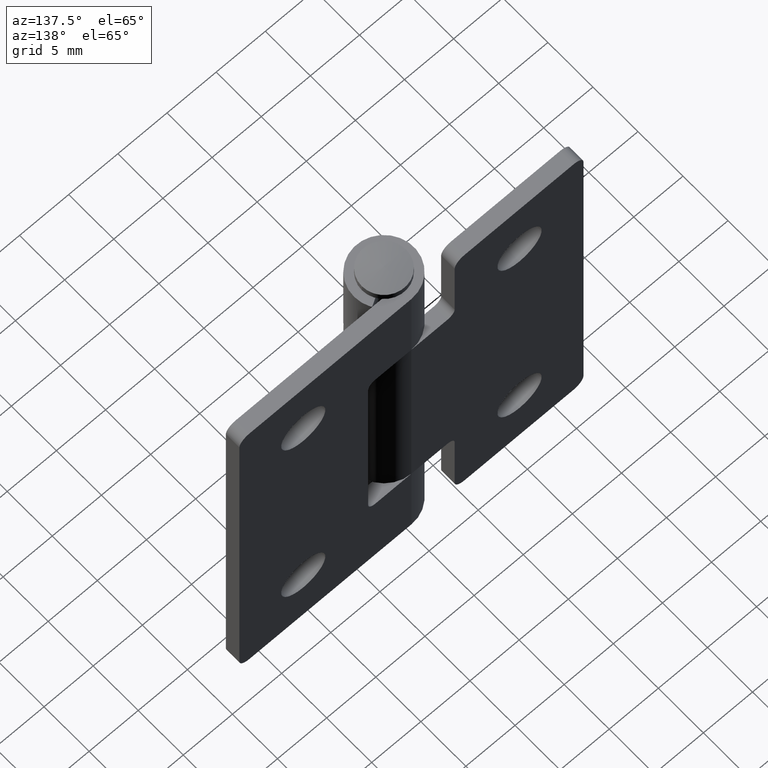
[diagram: clean part render]
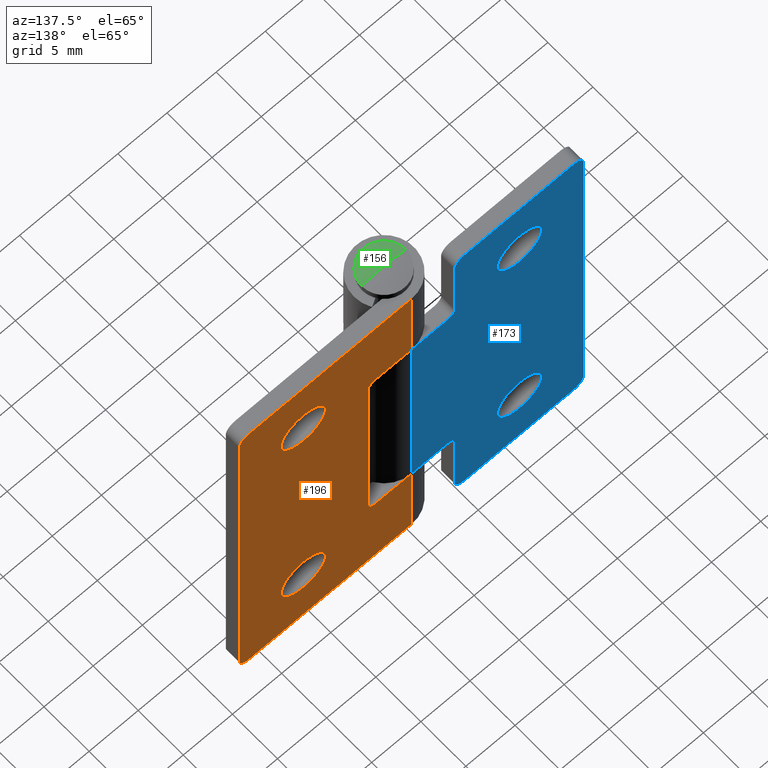
[diagram: same view with three faces highlighted in distinct colors, each labeled with its STEP entity id]
A machine part, auxiliary view with three faces highlighted in distinct colors.
Their STEP definitions:

[orange] entity #196 — the highlighted planar face has unit normal (0, 1, 0).
#196=ADVANCED_FACE('',(#683,#684,#685),#682,.T.);
#682=PLANE('',#1030);
#683=FACE_OUTER_BOUND('',#1031,.T.);
#684=FACE_BOUND('',#1032,.T.);
#685=FACE_BOUND('',#1033,.T.);
#1027=CARTESIAN_POINT('',(2.23684741027E+01,3.05000000000E+00,-3.19999768906E+00));
#1028=DIRECTION('',(0.00000000000E+00,1.00000000000E+00,0.00000000000E+00));
#1029=DIRECTION('',(0.00000000000E+00,-0.00000000000E+00,1.00000000000E+00));
#1030=AXIS2_PLACEMENT_3D('',#1027,#1028,#1029);
#1031=EDGE_LOOP('',(#1311,#1312,#1313,#1314,#1315,#1316,#1317,#1318,#1319,#1320,#1321,#1322));
#1032=EDGE_LOOP('',(#1323,#1324));
#1033=EDGE_LOOP('',(#1325,#1326));
#1311=ORIENTED_EDGE('',*,*,#1475,.T.);
#1312=ORIENTED_EDGE('',*,*,#1487,.F.);
#1313=ORIENTED_EDGE('',*,*,#1505,.T.);
#1314=ORIENTED_EDGE('',*,*,#1489,.F.);
#1315=ORIENTED_EDGE('',*,*,#1481,.F.);
#1316=ORIENTED_EDGE('',*,*,#1468,.F.);
#1317=ORIENTED_EDGE('',*,*,#1496,.F.);
#1318=ORIENTED_EDGE('',*,*,#1499,.T.);
#1319=ORIENTED_EDGE('',*,*,#1501,.F.);
#1320=ORIENTED_EDGE('',*,*,#1504,.T.);
#1321=ORIENTED_EDGE('',*,*,#1482,.F.);
#1322=ORIENTED_EDGE('',*,*,#1470,.F.);
#1323=ORIENTED_EDGE('',*,*,#1506,.T.);
#1324=ORIENTED_EDGE('',*,*,#1507,.T.);
#1325=ORIENTED_EDGE('',*,*,#1508,.T.);
#1326=ORIENTED_EDGE('',*,*,#1509,.T.);
#1468=EDGE_CURVE('',#2138,#2145,#2146,.T.);
#1470=EDGE_CURVE('',#2158,#2159,#2160,.T.);
#1475=EDGE_CURVE('',#2158,#2186,#2193,.T.);
#1481=EDGE_CURVE('',#2145,#2205,#2233,.T.);
#1482=EDGE_CURVE('',#2159,#2239,#2240,.T.);
#1487=EDGE_CURVE('',#2266,#2186,#2274,.T.);
#1489=EDGE_CURVE('',#2205,#2286,#2287,.T.);
#1496=EDGE_CURVE('',#2327,#2138,#2334,.T.);
#1499=EDGE_CURVE('',#2327,#2347,#2354,.T.);
#1501=EDGE_CURVE('',#2360,#2347,#2368,.T.);
#1504=EDGE_CURVE('',#2360,#2239,#2386,.T.);
#1505=EDGE_CURVE('',#2266,#2286,#2392,.T.);
#1506=EDGE_CURVE('',#2398,#2399,#2400,.T.);
#1507=EDGE_CURVE('',#2399,#2398,#2406,.T.);
#1508=EDGE_CURVE('',#2412,#2413,#2414,.T.);
#1509=EDGE_CURVE('',#2413,#2412,#2420,.T.);
#2138=VERTEX_POINT('',#2874);
#2145=VERTEX_POINT('',#2879);
#2146=LINE('',#2880,#2881);
#2158=VERTEX_POINT('',#2887);
#2159=VERTEX_POINT('',#2888);
#2160=LINE('',#2889,#2890);
#2186=VERTEX_POINT('',#2905);
#2193=LINE('',#2909,#2910);
#2205=VERTEX_POINT('',#2916);
#2233=LINE('',#2933,#2934);
#2239=VERTEX_POINT('',#2936);
#2240=LINE('',#2937,#2938);
#2266=VERTEX_POINT('',#2952);
#2274=CIRCLE('',#2960,1.00000000000E+00);
#2286=VERTEX_POINT('',#2965);
#2287=CIRCLE('',#2969,1.00000000000E+00);
#2327=VERTEX_POINT('',#2991);
#2334=LINE('',#2995,#2996);
#2347=VERTEX_POINT('',#3003);
#2354=CIRCLE('',#3010,7.50000000000E-01);
#2360=VERTEX_POINT('',#3011);
#2368=LINE('',#3016,#3017);
#2386=CIRCLE('',#3029,7.50000000000E-01);
#2392=LINE('',#3030,#3031);
#2398=VERTEX_POINT('',#3033);
#2399=VERTEX_POINT('',#3034);
#2400=CIRCLE('',#3038,2.25000000000E+00);
#2406=CIRCLE('',#3042,2.25000000000E+00);
#2412=VERTEX_POINT('',#3043);
#2413=VERTEX_POINT('',#3044);
#2414=CIRCLE('',#3048,2.25000000000E+00);
#2420=CIRCLE('',#3052,2.25000000000E+00);
#2874=CARTESIAN_POINT('',(2.41184741027E+01,3.05000000000E+00,9.80000231094E+00));
#2879=CARTESIAN_POINT('',(2.41184741027E+01,3.05000000000E+00,8.00002310939E-01));
#2880=CARTESIAN_POINT('',(2.41184741027E+01,3.05000000000E+00,9.80000231094E+00));
#2881=VECTOR('',#2882,9.00000000000E+00);
#2882=DIRECTION('',(0.00000000000E+00,0.00000000000E+00,-1.00000000000E+00));
#2887=CARTESIAN_POINT('',(2.41184741027E+01,3.05000000000E+00,4.08000023109E+01));
#2888=CARTESIAN_POINT('',(2.41184741027E+01,3.05000000000E+00,3.18000023109E+01));
#2889=CARTESIAN_POINT('',(2.41184741027E+01,3.05000000000E+00,4.08000023109E+01));
#2890=VECTOR('',#2891,9.00000000000E+00);
#2891=DIRECTION('',(0.00000000000E+00,0.00000000000E+00,-1.00000000000E+00));
#2905=CARTESIAN_POINT('',(4.06184741027E+01,3.05000000000E+00,4.08000023109E+01));
#2909=CARTESIAN_POINT('',(2.41184741027E+01,3.05000000000E+00,4.08000023109E+01));
#2910=VECTOR('',#2911,1.65000000000E+01);
#2911=DIRECTION('',(1.00000000000E+00,0.00000000000E+00,0.00000000000E+00));
#2916=CARTESIAN_POINT('',(4.06184741027E+01,3.05000000000E+00,8.00002310939E-01));
#2933=CARTESIAN_POINT('',(2.41184741027E+01,3.05000000000E+00,8.00002310939E-01));
#2934=VECTOR('',#2935,1.65000000000E+01);
#2935=DIRECTION('',(1.00000000000E+00,0.00000000000E+00,0.00000000000E+00));
#2936=CARTESIAN_POINT('',(2.77684741027E+01,3.05000000000E+00,3.18000023109E+01));
#2937=CARTESIAN_POINT('',(2.41184741027E+01,3.05000000000E+00,3.18000023109E+01));
#2938=VECTOR('',#2939,3.65000000000E+00);
#2939=DIRECTION('',(1.00000000000E+00,0.00000000000E+00,-1.48921970646E-13));
#2952=CARTESIAN_POINT('',(4.16184741027E+01,3.05000000000E+00,3.98000023109E+01));
#2957=CARTESIAN_POINT('',(4.06184741027E+01,3.05000000000E+00,3.98000023109E+01));
#2958=DIRECTION('',(0.00000000000E+00,-1.00000000000E+00,0.00000000000E+00));
#2959=DIRECTION('',(-0.00000000000E+00,-0.00000000000E+00,-1.00000000000E+00));
#2960=AXIS2_PLACEMENT_3D('',#2957,#2958,#2959);
#2965=CARTESIAN_POINT('',(4.16184741027E+01,3.05000000000E+00,1.80000231094E+00));
#2966=CARTESIAN_POINT('',(4.06184741027E+01,3.05000000000E+00,1.80000231094E+00));
#2967=DIRECTION('',(0.00000000000E+00,-1.00000000000E+00,0.00000000000E+00));
#2968=DIRECTION('',(-0.00000000000E+00,-0.00000000000E+00,-1.00000000000E+00));
#2969=AXIS2_PLACEMENT_3D('',#2966,#2967,#2968);
#2991=CARTESIAN_POINT('',(2.77684741027E+01,3.05000000000E+00,9.80000231094E+00));
#2995=CARTESIAN_POINT('',(2.77684741027E+01,3.05000000000E+00,9.80000231094E+00));
#2996=VECTOR('',#2997,3.65000000000E+00);
#2997=DIRECTION('',(-1.00000000000E+00,0.00000000000E+00,1.52328682392E-13));
#3003=CARTESIAN_POINT('',(2.85184741027E+01,3.05000000000E+00,1.05500023109E+01));
#3007=CARTESIAN_POINT('',(2.77684741027E+01,3.05000000000E+00,1.05500023109E+01));
#3008=DIRECTION('',(0.00000000000E+00,-1.00000000000E+00,0.00000000000E+00));
#3009=DIRECTION('',(-0.00000000000E+00,-0.00000000000E+00,-1.00000000000E+00));
#3010=AXIS2_PLACEMENT_3D('',#3007,#3008,#3009);
#3011=CARTESIAN_POINT('',(2.85184741027E+01,3.05000000000E+00,3.10500023109E+01));
#3016=CARTESIAN_POINT('',(2.85184741027E+01,3.05000000000E+00,3.10500023109E+01));
#3017=VECTOR('',#3018,2.05000000000E+01);
#3018=DIRECTION('',(0.00000000000E+00,0.00000000000E+00,-1.00000000000E+00));
#3026=CARTESIAN_POINT('',(2.77684741027E+01,3.05000000000E+00,3.10500023109E+01));
#3027=DIRECTION('',(0.00000000000E+00,-1.00000000000E+00,0.00000000000E+00));
#3028=DIRECTION('',(-0.00000000000E+00,-0.00000000000E+00,-1.00000000000E+00));
#3029=AXIS2_PLACEMENT_3D('',#3026,#3027,#3028);
#3030=CARTESIAN_POINT('',(4.16184741027E+01,3.05000000000E+00,3.98000023109E+01));
#3031=VECTOR('',#3032,3.80000000000E+01);
#3032=DIRECTION('',(0.00000000000E+00,0.00000000000E+00,-1.00000000000E+00));
#3033=CARTESIAN_POINT('',(3.51184741027E+01,3.05000000000E+00,1.00500023109E+01));
#3034=CARTESIAN_POINT('',(3.51184741027E+01,3.05000000000E+00,5.55000231094E+00));
#3035=CARTESIAN_POINT('',(3.51184741027E+01,3.05000000000E+00,7.80000231094E+00));
#3036=DIRECTION('',(0.00000000000E+00,-1.00000000000E+00,0.00000000000E+00));
#3037=DIRECTION('',(-1.22460635382E-16,0.00000000000E+00,1.00000000000E+00));
#3038=AXIS2_PLACEMENT_3D('',#3035,#3036,#3037);
#3039=CARTESIAN_POINT('',(3.51184741027E+01,3.05000000000E+00,7.80000231094E+00));
#3040=DIRECTION('',(0.00000000000E+00,-1.00000000000E+00,0.00000000000E+00));
#3041=DIRECTION('',(-1.22460635382E-16,0.00000000000E+00,1.00000000000E+00));
#3042=AXIS2_PLACEMENT_3D('',#3039,#3040,#3041);
#3043=CARTESIAN_POINT('',(3.51184741027E+01,3.05000000000E+00,3.60500023109E+01));
#3044=CARTESIAN_POINT('',(3.51184741027E+01,3.05000000000E+00,3.15500023109E+01));
#3045=CARTESIAN_POINT('',(3.51184741027E+01,3.05000000000E+00,3.38000023109E+01));
#3046=DIRECTION('',(0.00000000000E+00,-1.00000000000E+00,0.00000000000E+00));
#3047=DIRECTION('',(-1.22460635382E-16,0.00000000000E+00,1.00000000000E+00));
#3048=AXIS2_PLACEMENT_3D('',#3045,#3046,#3047);
#3049=CARTESIAN_POINT('',(3.51184741027E+01,3.05000000000E+00,3.38000023109E+01));
#3050=DIRECTION('',(0.00000000000E+00,-1.00000000000E+00,0.00000000000E+00));
#3051=DIRECTION('',(-1.22460635382E-16,0.00000000000E+00,1.00000000000E+00));
#3052=AXIS2_PLACEMENT_3D('',#3049,#3050,#3051);

[blue] entity #173 — the highlighted planar face has unit normal (0, -1, 0).
#173=ADVANCED_FACE('',(#451,#452,#453),#450,.F.);
#450=PLANE('',#913);
#451=FACE_OUTER_BOUND('',#914,.T.);
#452=FACE_BOUND('',#915,.T.);
#453=FACE_BOUND('',#916,.T.);
#910=CARTESIAN_POINT('',(-4.19922028826E+01,3.05000000000E+00,4.48000003698E+01));
#911=DIRECTION('',(0.00000000000E+00,-1.00000000000E+00,0.00000000000E+00));
#912=DIRECTION('',(0.00000000000E+00,0.00000000000E+00,-1.00000000000E+00));
#913=AXIS2_PLACEMENT_3D('',#910,#911,#912);
#914=EDGE_LOOP('',(#1190,#1191,#1192,#1193,#1194,#1195,#1196,#1197,#1198,#1199,#1200,#1201,#1202,#1203));
#915=EDGE_LOOP('',(#1204,#1205));
#916=EDGE_LOOP('',(#1206,#1207));
#1190=ORIENTED_EDGE('',*,*,#1441,.F.);
#1191=ORIENTED_EDGE('',*,*,#1442,.F.);
#1192=ORIENTED_EDGE('',*,*,#1443,.T.);
#1193=ORIENTED_EDGE('',*,*,#1444,.F.);
#1194=ORIENTED_EDGE('',*,*,#1430,.F.);
#1195=ORIENTED_EDGE('',*,*,#1437,.F.);
#1196=ORIENTED_EDGE('',*,*,#1438,.T.);
#1197=ORIENTED_EDGE('',*,*,#1434,.F.);
#1198=ORIENTED_EDGE('',*,*,#1439,.F.);
#1199=ORIENTED_EDGE('',*,*,#1429,.F.);
#1200=ORIENTED_EDGE('',*,*,#1440,.F.);
#1201=ORIENTED_EDGE('',*,*,#1411,.T.);
#1202=ORIENTED_EDGE('',*,*,#1426,.F.);
#1203=ORIENTED_EDGE('',*,*,#1424,.T.);
#1204=ORIENTED_EDGE('',*,*,#1445,.T.);
#1205=ORIENTED_EDGE('',*,*,#1446,.T.);
#1206=ORIENTED_EDGE('',*,*,#1447,.T.);
#1207=ORIENTED_EDGE('',*,*,#1448,.T.);
#1411=EDGE_CURVE('',#1768,#1769,#1770,.T.);
#1424=EDGE_CURVE('',#1855,#1848,#1856,.T.);
#1426=EDGE_CURVE('',#1855,#1769,#1868,.T.);
#1429=EDGE_CURVE('',#1881,#1874,#1888,.T.);
#1430=EDGE_CURVE('',#1894,#1895,#1896,.T.);
#1434=EDGE_CURVE('',#1914,#1921,#1922,.T.);
#1437=EDGE_CURVE('',#1934,#1894,#1941,.T.);
#1438=EDGE_CURVE('',#1934,#1921,#1947,.T.);
#1439=EDGE_CURVE('',#1874,#1914,#1953,.T.);
#1440=EDGE_CURVE('',#1768,#1881,#1959,.T.);
#1441=EDGE_CURVE('',#1965,#1848,#1966,.T.);
#1442=EDGE_CURVE('',#1972,#1965,#1973,.T.);
#1443=EDGE_CURVE('',#1972,#1979,#1980,.T.);
#1444=EDGE_CURVE('',#1895,#1979,#1986,.T.);
#1445=EDGE_CURVE('',#1992,#1993,#1994,.T.);
#1446=EDGE_CURVE('',#1993,#1992,#2000,.T.);
#1447=EDGE_CURVE('',#2006,#2007,#2008,.T.);
#1448=EDGE_CURVE('',#2007,#2006,#2014,.T.);
#1768=VERTEX_POINT('',#2656);
#1769=VERTEX_POINT('',#2657);
#1770=LINE('',#2658,#2659);
#1848=VERTEX_POINT('',#2704);
#1855=VERTEX_POINT('',#2708);
#1856=LINE('',#2709,#2710);
#1868=CIRCLE('',#2718,1.00000000000E+00);
#1874=VERTEX_POINT('',#2719);
#1881=VERTEX_POINT('',#2723);
#1888=LINE('',#2727,#2728);
#1894=VERTEX_POINT('',#2730);
#1895=VERTEX_POINT('',#2731);
#1896=LINE('',#2732,#2733);
#1914=VERTEX_POINT('',#2743);
#1921=VERTEX_POINT('',#2747);
#1922=LINE('',#2748,#2749);
#1934=VERTEX_POINT('',#2754);
#1941=LINE('',#2758,#2759);
#1947=CIRCLE('',#2764,7.50000000000E-01);
#1953=CIRCLE('',#2768,1.00000000000E+00);
#1959=CIRCLE('',#2772,1.00000000000E+00);
#1965=VERTEX_POINT('',#2773);
#1966=CIRCLE('',#2777,1.00000000000E+00);
#1972=VERTEX_POINT('',#2778);
#1973=LINE('',#2779,#2780);
#1979=VERTEX_POINT('',#2782);
#1980=CIRCLE('',#2786,7.50000000000E-01);
#1986=LINE('',#2787,#2788);
#1992=VERTEX_POINT('',#2790);
#1993=VERTEX_POINT('',#2791);
#1994=CIRCLE('',#2795,2.25000000000E+00);
#2000=CIRCLE('',#2799,2.25000000000E+00);
#2006=VERTEX_POINT('',#2800);
#2007=VERTEX_POINT('',#2801);
#2008=CIRCLE('',#2805,2.25000000000E+00);
#2014=CIRCLE('',#2809,2.25000000000E+00);
#2656=CARTESIAN_POINT('',(-4.02422028826E+01,3.05000000000E+00,1.80000036981E+00));
#2657=CARTESIAN_POINT('',(-4.02422028826E+01,3.05000000000E+00,3.98000003698E+01));
#2658=CARTESIAN_POINT('',(-4.02422028826E+01,3.05000000000E+00,1.80000036981E+00));
#2659=VECTOR('',#2660,3.80000000000E+01);
#2660=DIRECTION('',(0.00000000000E+00,0.00000000000E+00,1.00000000000E+00));
#2704=CARTESIAN_POINT('',(-2.81422028826E+01,3.05000000000E+00,4.08000003698E+01));
#2708=CARTESIAN_POINT('',(-3.92422028826E+01,3.05000000000E+00,4.08000003698E+01));
#2709=CARTESIAN_POINT('',(-3.92422028826E+01,3.05000000000E+00,4.08000003698E+01));
#2710=VECTOR('',#2711,1.11000000000E+01);
#2711=DIRECTION('',(1.00000000000E+00,0.00000000000E+00,0.00000000000E+00));
#2715=CARTESIAN_POINT('',(-3.92422028826E+01,3.05000000000E+00,3.98000003698E+01));
#2716=DIRECTION('',(0.00000000000E+00,-1.00000000000E+00,0.00000000000E+00));
#2717=DIRECTION('',(-0.00000000000E+00,-0.00000000000E+00,-1.00000000000E+00));
#2718=AXIS2_PLACEMENT_3D('',#2715,#2716,#2717);
#2719=CARTESIAN_POINT('',(-2.81422028826E+01,3.05000000000E+00,8.00000369808E-01));
#2723=CARTESIAN_POINT('',(-3.92422028826E+01,3.05000000000E+00,8.00000369808E-01));
#2727=CARTESIAN_POINT('',(-3.92422028826E+01,3.05000000000E+00,8.00000369808E-01));
#2728=VECTOR('',#2729,1.11000000000E+01);
#2729=DIRECTION('',(1.00000000000E+00,0.00000000000E+00,0.00000000000E+00));
#2730=CARTESIAN_POINT('',(-2.27422028826E+01,3.05000000000E+00,9.80000036981E+00));
#2731=CARTESIAN_POINT('',(-2.27422028826E+01,3.05000000000E+00,3.18000003698E+01));
#2732=CARTESIAN_POINT('',(-2.27422028826E+01,3.05000000000E+00,9.80000036981E+00));
#2733=VECTOR('',#2734,2.20000000000E+01);
#2734=DIRECTION('',(0.00000000000E+00,0.00000000000E+00,1.00000000000E+00));
#2743=CARTESIAN_POINT('',(-2.71422028826E+01,3.05000000000E+00,1.80000036981E+00));
#2747=CARTESIAN_POINT('',(-2.71422028826E+01,3.05000000000E+00,9.05000036981E+00));
#2748=CARTESIAN_POINT('',(-2.71422028826E+01,3.05000000000E+00,1.80000036981E+00));
#2749=VECTOR('',#2750,7.25000000000E+00);
#2750=DIRECTION('',(0.00000000000E+00,0.00000000000E+00,1.00000000000E+00));
#2754=CARTESIAN_POINT('',(-2.63922028826E+01,3.05000000000E+00,9.80000036981E+00));
#2758=CARTESIAN_POINT('',(-2.63922028826E+01,3.05000000000E+00,9.80000036981E+00));
#2759=VECTOR('',#2760,3.65000000000E+00);
#2760=DIRECTION('',(1.00000000000E+00,0.00000000000E+00,0.00000000000E+00));
#2761=CARTESIAN_POINT('',(-2.63922028826E+01,3.05000000000E+00,9.05000036981E+00));
#2762=DIRECTION('',(0.00000000000E+00,-1.00000000000E+00,0.00000000000E+00));
#2763=DIRECTION('',(-0.00000000000E+00,-0.00000000000E+00,-1.00000000000E+00));
#2764=AXIS2_PLACEMENT_3D('',#2761,#2762,#2763);
#2765=CARTESIAN_POINT('',(-2.81422028826E+01,3.05000000000E+00,1.80000036981E+00));
#2766=DIRECTION('',(0.00000000000E+00,-1.00000000000E+00,0.00000000000E+00));
#2767=DIRECTION('',(-0.00000000000E+00,-0.00000000000E+00,-1.00000000000E+00));
#2768=AXIS2_PLACEMENT_3D('',#2765,#2766,#2767);
#2769=CARTESIAN_POINT('',(-3.92422028826E+01,3.05000000000E+00,1.80000036981E+00));
#2770=DIRECTION('',(0.00000000000E+00,-1.00000000000E+00,0.00000000000E+00));
#2771=DIRECTION('',(-0.00000000000E+00,-0.00000000000E+00,-1.00000000000E+00));
#2772=AXIS2_PLACEMENT_3D('',#2769,#2770,#2771);
#2773=CARTESIAN_POINT('',(-2.71422028826E+01,3.05000000000E+00,3.98000003698E+01));
#2774=CARTESIAN_POINT('',(-2.81422028826E+01,3.05000000000E+00,3.98000003698E+01));
#2775=DIRECTION('',(0.00000000000E+00,-1.00000000000E+00,0.00000000000E+00));
#2776=DIRECTION('',(-0.00000000000E+00,-0.00000000000E+00,-1.00000000000E+00));
#2777=AXIS2_PLACEMENT_3D('',#2774,#2775,#2776);
#2778=CARTESIAN_POINT('',(-2.71422028826E+01,3.05000000000E+00,3.25500003698E+01));
#2779=CARTESIAN_POINT('',(-2.71422028826E+01,3.05000000000E+00,3.25500003698E+01));
#2780=VECTOR('',#2781,7.25000000000E+00);
#2781=DIRECTION('',(0.00000000000E+00,0.00000000000E+00,1.00000000000E+00));
#2782=CARTESIAN_POINT('',(-2.63922028826E+01,3.05000000000E+00,3.18000003698E+01));
#2783=CARTESIAN_POINT('',(-2.63922028826E+01,3.05000000000E+00,3.25500003698E+01));
#2784=DIRECTION('',(0.00000000000E+00,-1.00000000000E+00,0.00000000000E+00));
#2785=DIRECTION('',(-0.00000000000E+00,-0.00000000000E+00,-1.00000000000E+00));
#2786=AXIS2_PLACEMENT_3D('',#2783,#2784,#2785);
#2787=CARTESIAN_POINT('',(-2.27422028826E+01,3.05000000000E+00,3.18000003698E+01));
#2788=VECTOR('',#2789,3.65000000000E+00);
#2789=DIRECTION('',(-1.00000000000E+00,0.00000000000E+00,0.00000000000E+00));
#2790=CARTESIAN_POINT('',(-3.37422028826E+01,3.05000000000E+00,1.00500003698E+01));
#2791=CARTESIAN_POINT('',(-3.37422028826E+01,3.05000000000E+00,5.55000036981E+00));
#2792=CARTESIAN_POINT('',(-3.37422028826E+01,3.05000000000E+00,7.80000036981E+00));
#2793=DIRECTION('',(0.00000000000E+00,-1.00000000000E+00,0.00000000000E+00));
#2794=DIRECTION('',(-1.22460635382E-16,0.00000000000E+00,1.00000000000E+00));
#2795=AXIS2_PLACEMENT_3D('',#2792,#2793,#2794);
#2796=CARTESIAN_POINT('',(-3.37422028826E+01,3.05000000000E+00,7.80000036981E+00));
#2797=DIRECTION('',(0.00000000000E+00,-1.00000000000E+00,0.00000000000E+00));
#2798=DIRECTION('',(-1.22460635382E-16,0.00000000000E+00,1.00000000000E+00));
#2799=AXIS2_PLACEMENT_3D('',#2796,#2797,#2798);
#2800=CARTESIAN_POINT('',(-3.37422028826E+01,3.05000000000E+00,3.60500003698E+01));
#2801=CARTESIAN_POINT('',(-3.37422028826E+01,3.05000000000E+00,3.15500003698E+01));
#2802=CARTESIAN_POINT('',(-3.37422028826E+01,3.05000000000E+00,3.38000003698E+01));
#2803=DIRECTION('',(0.00000000000E+00,-1.00000000000E+00,0.00000000000E+00));
#2804=DIRECTION('',(-1.22460635382E-16,0.00000000000E+00,1.00000000000E+00));
#2805=AXIS2_PLACEMENT_3D('',#2802,#2803,#2804);
#2806=CARTESIAN_POINT('',(-3.37422028826E+01,3.05000000000E+00,3.38000003698E+01));
#2807=DIRECTION('',(0.00000000000E+00,-1.00000000000E+00,0.00000000000E+00));
#2808=DIRECTION('',(-1.22460635382E-16,0.00000000000E+00,1.00000000000E+00));
#2809=AXIS2_PLACEMENT_3D('',#2806,#2807,#2808);

[green] entity #156 — the highlighted spherical surface has radius 8.5875 mm.
#156=ADVANCED_FACE('',(#279),#278,.T.);
#278=SPHERICAL_SURFACE('',#826,8.58750000000E+00);
#279=FACE_OUTER_BOUND('',#827,.T.);
#823=CARTESIAN_POINT('',(0.00000000000E+00,0.00000000000E+00,3.32125000000E+01));
#824=DIRECTION('',(-0.00000000000E+00,-0.00000000000E+00,-1.00000000000E+00));
#825=DIRECTION('',(1.00000000000E+00,4.04453249759E-21,0.00000000000E+00));
#826=AXIS2_PLACEMENT_3D('',#823,#824,#825);
#827=EDGE_LOOP('',(#1108,#1109,#1110));
#1108=ORIENTED_EDGE('',*,*,#1389,.T.);
#1109=ORIENTED_EDGE('',*,*,#1388,.F.);
#1110=ORIENTED_EDGE('',*,*,#1390,.F.);
#1388=EDGE_CURVE('',#1591,#1590,#1610,.T.);
#1389=EDGE_CURVE('',#1616,#1590,#1617,.T.);
#1390=EDGE_CURVE('',#1616,#1591,#1623,.T.);
#1590=VERTEX_POINT('',#2546);
#1591=VERTEX_POINT('',#2547);
#1610=CIRCLE('',#2559,2.25000000000E+00);
#1616=VERTEX_POINT('',#2560);
#1617=(BOUNDED_CURVE() B_SPLINE_CURVE(2,(#2561,#2562,#2563),.UNSPECIFIED.,.F.,.F.) B_SPLINE_CURVE_WITH_KNOTS((3,3),(0.00000000000E+00,1.00000000000E+00),.UNSPECIFIED.) CURVE() GEOMETRIC_REPRESENTATION_ITEM() RATIONAL_B_SPLINE_CURVE((1.00000000000E+00,9.91227900683E-01,1.00000000000E+00)) REPRESENTATION_ITEM('') );
#1623=(BOUNDED_CURVE() B_SPLINE_CURVE(2,(#2564,#2565,#2566),.UNSPECIFIED.,.F.,.F.) B_SPLINE_CURVE_WITH_KNOTS((3,3),(0.00000000000E+00,1.00000000000E+00),.UNSPECIFIED.) CURVE() GEOMETRIC_REPRESENTATION_ITEM() RATIONAL_B_SPLINE_CURVE((7.50000000000E-01,7.43420925512E-01,7.50000000000E-01)) REPRESENTATION_ITEM('') );
#2546=CARTESIAN_POINT('',(-2.25000000000E+00,0.00000000000E+00,4.15000000000E+01));
#2547=CARTESIAN_POINT('',(2.25000000000E+00,-1.36631446897E-13,4.15000000000E+01));
#2556=CARTESIAN_POINT('',(0.00000000000E+00,0.00000000000E+00,4.15000000000E+01));
#2557=DIRECTION('',(-0.00000000000E+00,0.00000000000E+00,-1.00000000000E+00));
#2558=DIRECTION('',(-1.00000000000E+00,-1.22460635382E-16,0.00000000000E+00));
#2559=AXIS2_PLACEMENT_3D('',#2556,#2557,#2558);
#2560=CARTESIAN_POINT('',(-5.25815353172E-16,6.43916822432E-32,4.18000000000E+01));
#2561=CARTESIAN_POINT('',(-5.25815353172E-16,6.43916822432E-32,4.18000000000E+01));
#2562=CARTESIAN_POINT('',(-1.14500000000E+00,1.40217427513E-16,4.18000000000E+01));
#2563=CARTESIAN_POINT('',(-2.25000000000E+00,2.75536429610E-16,4.15000000000E+01));
#2564=CARTESIAN_POINT('',(5.25815353172E-16,-6.57384087684E-32,4.18000000000E+01));
#2565=CARTESIAN_POINT('',(1.14500000000E+00,-2.24009639733E-16,4.18000000000E+01));
#2566=CARTESIAN_POINT('',(2.25000000000E+00,-4.44089209850E-16,4.15000000000E+01));